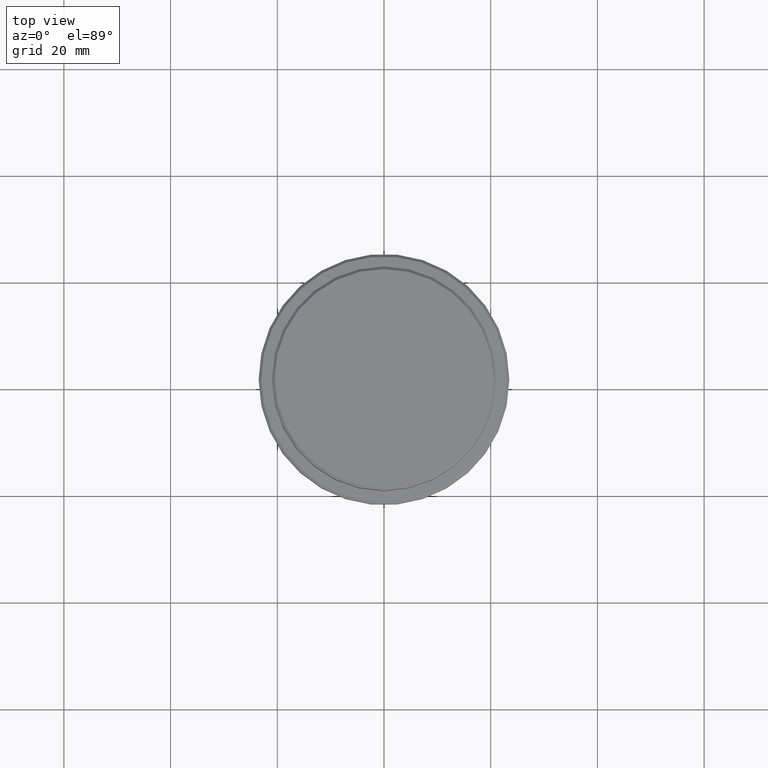
[diagram: clean part render]
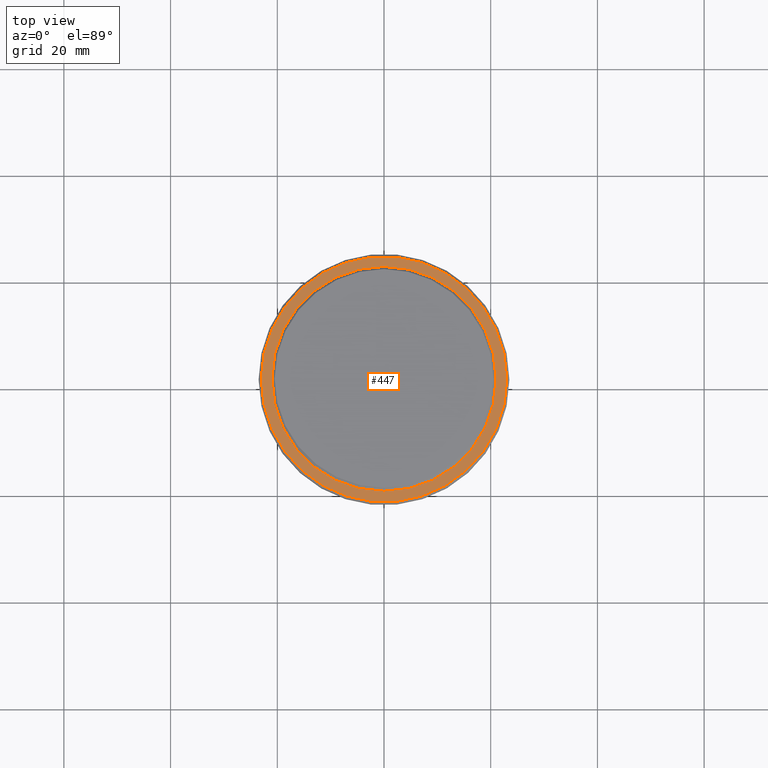
[diagram: same view with one face highlighted and labeled with its STEP entity id]
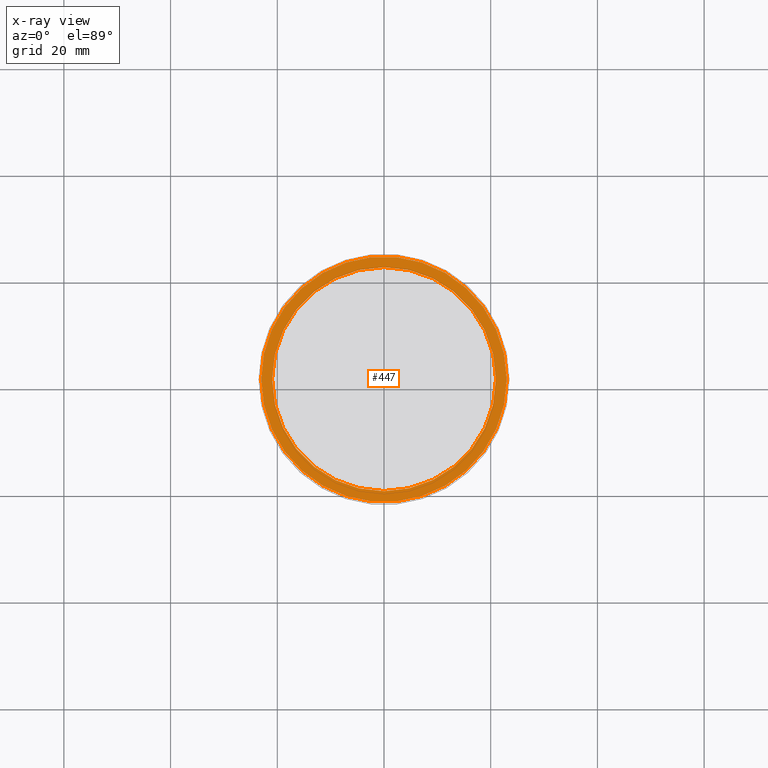
[diagram: x-ray of the same camera — body ghosted, the highlighted face saturated]
A machine part, top view. The second image highlights one B-rep face of the part: STEP entity #447.
The next image is the same camera in x-ray: the body ghosted, the highlighted face saturated — about 0% of this face is hidden behind the body in this view.
In plain terms, the highlighted planar face has unit normal (0, -0, 1).
Its self-contained STEP definition (entity closure, byte-faithful):
#11 = ORIENTED_EDGE ( 'NONE', *, *, #785, .T. ) ;
#23 = CARTESIAN_POINT ( 'NONE',  ( -22.99999999999998224, 0.000000000000000000, -9.000000000000000000 ) ) ;
#69 = CIRCLE ( 'NONE', #1065, 22.99999999999998224 ) ;
#84 = CARTESIAN_POINT ( 'NONE',  ( 0.000000000000000000, 0.000000000000000000, -9.000000000000000000 ) ) ;
#100 = EDGE_CURVE ( 'NONE', #237, #500, #1191, .T. ) ;
#105 = ORIENTED_EDGE ( 'NONE', *, *, #656, .T. ) ;
#144 = CARTESIAN_POINT ( 'NONE',  ( -20.99999999999999289, 2.571758278209440872E-15, -9.000000000000000000 ) ) ;
#149 = CARTESIAN_POINT ( 'NONE',  ( 0.000000000000000000, 0.000000000000000000, -9.000000000000000000 ) ) ;
#226 = EDGE_LOOP ( 'NONE', ( #11, #1352 ) ) ;
#237 = VERTEX_POINT ( 'NONE', #144 ) ;
#242 = CIRCLE ( 'NONE', #1220, 20.99999999999999289 ) ;
#254 = CARTESIAN_POINT ( 'NONE',  ( 22.99999999999998224, 2.847303808017595350E-15, -9.000000000000000000 ) ) ;
#269 = DIRECTION ( 'NONE',  ( 1.000000000000000000, 0.000000000000000000, 0.000000000000000000 ) ) ;
#311 = VERTEX_POINT ( 'NONE', #254 ) ;
#315 = CIRCLE ( 'NONE', #442, 22.99999999999998224 ) ;
#342 = FACE_OUTER_BOUND ( 'NONE', #226, .T. ) ;
#366 = DIRECTION ( 'NONE',  ( 0.000000000000000000, -0.000000000000000000, 1.000000000000000000 ) ) ;
#442 = AXIS2_PLACEMENT_3D ( 'NONE', #797, #823, #707 ) ;
#447 = ADVANCED_FACE ( 'NONE', ( #342, #914 ), #562, .T. ) ;
#500 = VERTEX_POINT ( 'NONE', #588 ) ;
#522 = CARTESIAN_POINT ( 'NONE',  ( 0.000000000000000000, 0.000000000000000000, -9.000000000000000000 ) ) ;
#534 = DIRECTION ( 'NONE',  ( 1.000000000000000000, 0.000000000000000000, 0.000000000000000000 ) ) ;
#549 = VERTEX_POINT ( 'NONE', #23 ) ;
#556 = DIRECTION ( 'NONE',  ( 1.000000000000000000, 0.000000000000000000, 0.000000000000000000 ) ) ;
#560 = DIRECTION ( 'NONE',  ( -0.000000000000000000, -0.000000000000000000, 1.000000000000000000 ) ) ;
#562 = PLANE ( 'NONE',  #974 ) ;
#588 = CARTESIAN_POINT ( 'NONE',  ( 20.99999999999999289, 0.000000000000000000, -9.000000000000000000 ) ) ;
#655 = CARTESIAN_POINT ( 'NONE',  ( 0.000000000000000000, 20.49999999999999645, -9.000000000000000000 ) ) ;
#656 = EDGE_CURVE ( 'NONE', #500, #237, #242, .T. ) ;
#707 = DIRECTION ( 'NONE',  ( 1.000000000000000000, 0.000000000000000000, 0.000000000000000000 ) ) ;
#709 = ORIENTED_EDGE ( 'NONE', *, *, #100, .T. ) ;
#751 = DIRECTION ( 'NONE',  ( 0.000000000000000000, 0.000000000000000000, -1.000000000000000000 ) ) ;
#785 = EDGE_CURVE ( 'NONE', #549, #311, #69, .T. ) ;
#797 = CARTESIAN_POINT ( 'NONE',  ( 0.000000000000000000, 0.000000000000000000, -9.000000000000000000 ) ) ;
#823 = DIRECTION ( 'NONE',  ( -0.000000000000000000, -0.000000000000000000, 1.000000000000000000 ) ) ;
#844 = EDGE_CURVE ( 'NONE', #311, #549, #315, .T. ) ;
#886 = DIRECTION ( 'NONE',  ( 1.000000000000000000, 0.000000000000000000, 0.000000000000000000 ) ) ;
#914 = FACE_BOUND ( 'NONE', #980, .T. ) ;
#971 = AXIS2_PLACEMENT_3D ( 'NONE', #522, #1198, #534 ) ;
#974 = AXIS2_PLACEMENT_3D ( 'NONE', #655, #366, #269 ) ;
#980 = EDGE_LOOP ( 'NONE', ( #105, #709 ) ) ;
#1065 = AXIS2_PLACEMENT_3D ( 'NONE', #149, #560, #886 ) ;
#1191 = CIRCLE ( 'NONE', #971, 20.99999999999999289 ) ;
#1198 = DIRECTION ( 'NONE',  ( 0.000000000000000000, 0.000000000000000000, -1.000000000000000000 ) ) ;
#1220 = AXIS2_PLACEMENT_3D ( 'NONE', #84, #751, #556 ) ;
#1352 = ORIENTED_EDGE ( 'NONE', *, *, #844, .T. ) ;